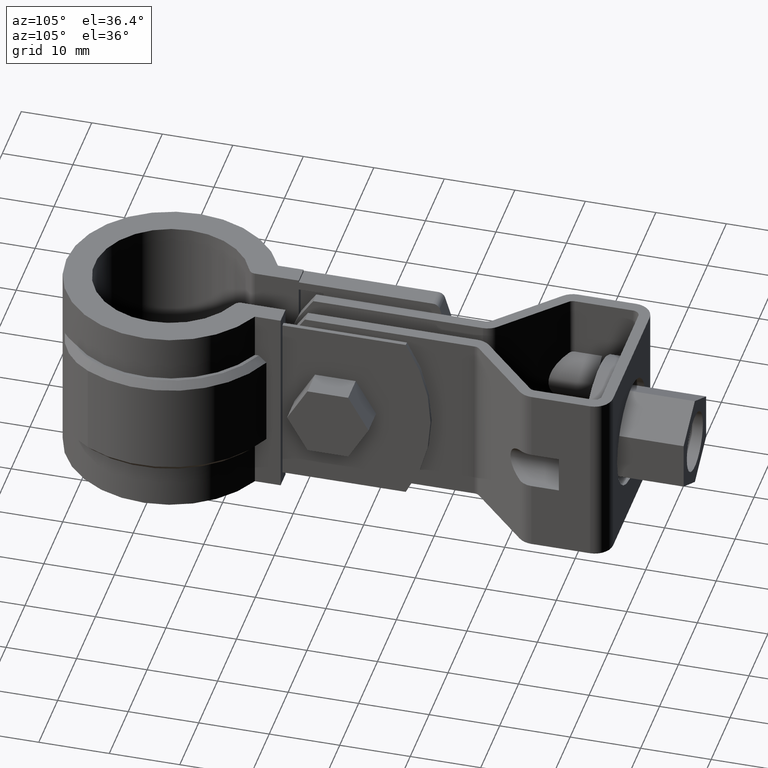
[diagram: clean part render]
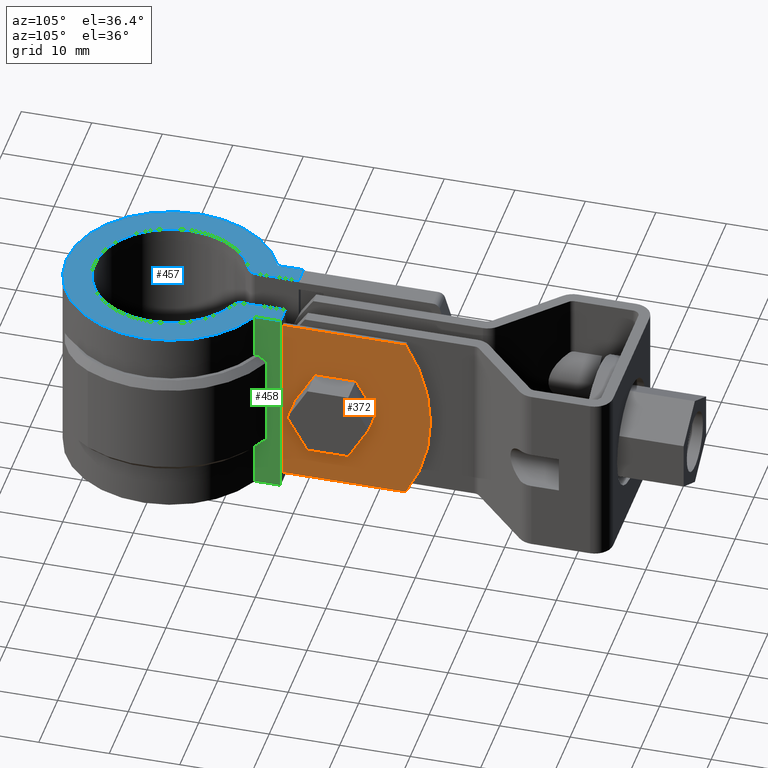
[diagram: same view with three faces highlighted in distinct colors, each labeled with its STEP entity id]
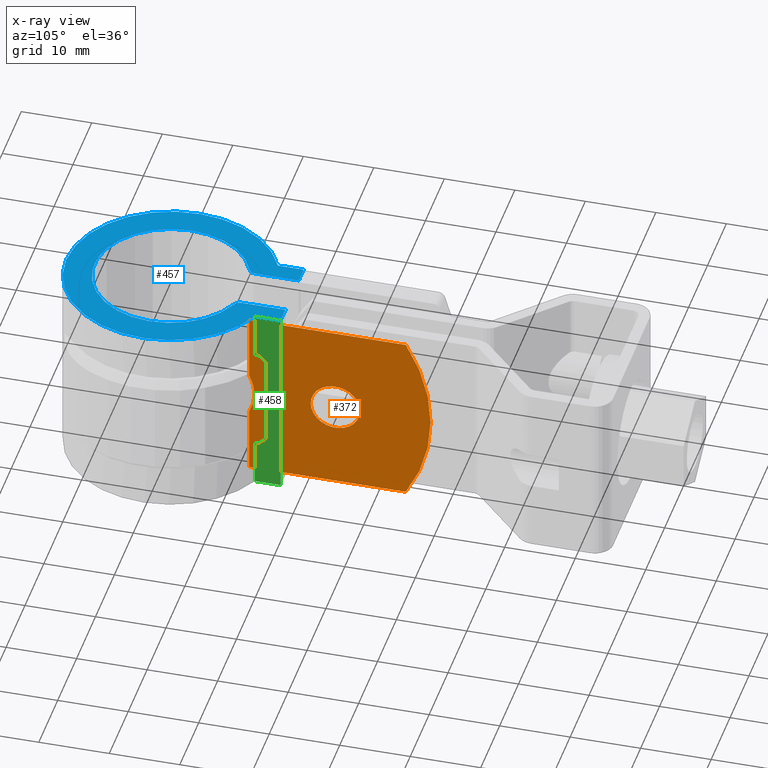
[diagram: x-ray of the same camera — body ghosted, the three highlighted faces saturated]
A machine part, auxiliary view with three faces highlighted in distinct colors.
The next image is the same camera in x-ray (body ghosted, the three faces saturated) — at least one of them is partly hidden behind the body in this view.
Their STEP definitions:

[orange] entity #372 — the highlighted planar face has unit normal (-1, 0, 0).
#372 = ADVANCED_FACE( '', ( #707, #708 ), #709, .F. );
#707 = FACE_BOUND( '', #1452, .T. );
#708 = FACE_OUTER_BOUND( '', #1453, .T. );
#709 = PLANE( '', #1454 );
#1452 = EDGE_LOOP( '', ( #2920 ) );
#1453 = EDGE_LOOP( '', ( #2921, #2922, #2923, #2924, #2925, #2926 ) );
#1454 = AXIS2_PLACEMENT_3D( '', #2927, #2928, #2929 );
#2920 = ORIENTED_EDGE( '', *, *, #6334, .F. );
#2921 = ORIENTED_EDGE( '', *, *, #6322, .F. );
#2922 = ORIENTED_EDGE( '', *, *, #6333, .T. );
#2923 = ORIENTED_EDGE( '', *, *, #6335, .T. );
#2924 = ORIENTED_EDGE( '', *, *, #6336, .F. );
#2925 = ORIENTED_EDGE( '', *, *, #6302, .F. );
#2926 = ORIENTED_EDGE( '', *, *, #6330, .T. );
#2927 = CARTESIAN_POINT( '', ( 5.10000000000000, 12.4560226396712, 0.000000000000000 ) );
#2928 = DIRECTION( '', ( -1.00000000000000, 6.12303176911189E-017, 0.000000000000000 ) );
#2929 = DIRECTION( '', ( 6.12303176911189E-017, 1.00000000000000, 0.000000000000000 ) );
#6302 = EDGE_CURVE( '', #7229, #7231, #7232, .T. );
#6322 = EDGE_CURVE( '', #7266, #7260, #7268, .T. );
#6330 = EDGE_CURVE( '', #7229, #7260, #7282, .T. );
#6333 = EDGE_CURVE( '', #7266, #7285, #7287, .T. );
#6334 = EDGE_CURVE( '', #7288, #7288, #7289, .F. );
#6335 = EDGE_CURVE( '', #7285, #7290, #7291, .T. );
#6336 = EDGE_CURVE( '', #7231, #7290, #7292, .T. );
#7229 = VERTEX_POINT( '', #8842 );
#7231 = VERTEX_POINT( '', #8844 );
#7232 = LINE( '', #8845, #8846 );
#7260 = VERTEX_POINT( '', #8947 );
#7266 = VERTEX_POINT( '', #9007 );
#7268 = B_SPLINE_CURVE_WITH_KNOTS( '', 3, ( #9022, #9023, #9024, #9025, #9026, #9027, #9028, #9029, #9030, #9031, #9032, #9033, #9034 ), .UNSPECIFIED., .F., .F., ( 4, 2, 2, 1, 2, 2, 4 ), ( 7.15244812269100E-018, 0.00156146706594364, 0.00234220059891546, 0.00312293413188728, 0.00390366766485910, 0.00468440119783091, 0.00624586826377455 ), .UNSPECIFIED. );
#7282 = LINE( '', #9145, #9146 );
#7285 = VERTEX_POINT( '', #9150 );
#7287 = LINE( '', #9152, #9153 );
#7288 = VERTEX_POINT( '', #9154 );
#7289 = CIRCLE( '', #9155, 3.50000000000000 );
#7290 = VERTEX_POINT( '', #9156 );
#7291 = LINE( '', #9157, #9158 );
#7292 = CIRCLE( '', #9159, 24.0000000000000 );
#8842 = CARTESIAN_POINT( '', ( 5.10000000000000, 12.4560226396712, 0.000000000000000 ) );
#8844 = CARTESIAN_POINT( '', ( 5.10000000000000, 34.6660166696247, 1.96626275013679E-031 ) );
#8845 = CARTESIAN_POINT( '', ( 5.10000000000000, 12.4560226396712, 0.000000000000000 ) );
#8846 = VECTOR( '', #12280, 1000.00000000000 );
#8947 = CARTESIAN_POINT( '', ( 5.10000000000000, 12.4560226396712, -9.49142302660780 ) );
#9007 = CARTESIAN_POINT( '', ( 5.10000000000000, 12.4560226396712, -15.5085769733922 ) );
#9022 = CARTESIAN_POINT( '', ( 5.10000000000000, 12.4560226396712, -15.5085769733922 ) );
#9023 = CARTESIAN_POINT( '', ( 5.10000000000000, 12.6983769073164, -15.0418384808945 ) );
#9024 = CARTESIAN_POINT( '', ( 5.10000000000000, 12.8820837839224, -14.5546680923872 ) );
#9025 = CARTESIAN_POINT( '', ( 5.10000000000000, 13.0708746798180, -13.7936833090650 ) );
#9026 = CARTESIAN_POINT( '', ( 5.09999999999999, 13.1190641562530, -13.5339701798726 ) );
#9027 = CARTESIAN_POINT( '', ( 5.09999999999998, 13.1828371040742, -13.0170007302456 ) );
#9028 = CARTESIAN_POINT( '', ( 5.09999999999984, 13.2149639764387, -12.4995355366777 ) );
#9029 = CARTESIAN_POINT( '', ( 5.10000000000000, 13.1827186519684, -11.9810619360295 ) );
#9030 = CARTESIAN_POINT( '', ( 5.10000000000000, 13.1184558356488, -11.4620867731067 ) );
#9031 = CARTESIAN_POINT( '', ( 5.10000000000001, 13.0700926469305, -11.2027157491336 ) );
#9032 = CARTESIAN_POINT( '', ( 5.10000000000001, 12.8816598140984, -10.4445274941389 ) );
#9033 = CARTESIAN_POINT( '', ( 5.10000000000000, 12.6983868123583, -9.95818059475186 ) );
#9034 = CARTESIAN_POINT( '', ( 5.10000000000000, 12.4560226396712, -9.49142302660780 ) );
#9145 = CARTESIAN_POINT( '', ( 5.10000000000000, 12.4560226396712, 0.000000000000000 ) );
#9146 = VECTOR( '', #12299, 1000.00000000000 );
#9150 = CARTESIAN_POINT( '', ( 5.10000000000000, 12.4560226396712, -25.0000000000000 ) );
#9152 = CARTESIAN_POINT( '', ( 5.10000000000000, 12.4560226396712, 0.000000000000000 ) );
#9153 = VECTOR( '', #12304, 1000.00000000000 );
#9154 = CARTESIAN_POINT( '', ( 5.10000000000000, 21.1782154210768, -12.5000000000000 ) );
#9155 = AXIS2_PLACEMENT_3D( '', #12305, #12306, #12307 );
#9156 = CARTESIAN_POINT( '', ( 5.10000000000000, 34.6660166696247, -25.0000000000000 ) );
#9157 = CARTESIAN_POINT( '', ( 5.10000000000000, 12.4560226396712, -25.0000000000000 ) );
#9158 = VECTOR( '', #12308, 1000.00000000000 );
#9159 = AXIS2_PLACEMENT_3D( '', #12309, #12310, #12311 );
#12280 = DIRECTION( '', ( 6.12303176911189E-017, 1.00000000000000, 0.000000000000000 ) );
#12299 = DIRECTION( '', ( 0.000000000000000, 0.000000000000000, -1.00000000000000 ) );
#12304 = DIRECTION( '', ( 0.000000000000000, 0.000000000000000, -1.00000000000000 ) );
#12305 = CARTESIAN_POINT( '', ( 5.10000000000000, 24.6782154210768, -12.5000000000000 ) );
#12306 = DIRECTION( '', ( -1.00000000000000, 6.12303176911189E-017, 0.000000000000000 ) );
#12307 = DIRECTION( '', ( -6.12303176911189E-017, -1.00000000000000, 0.000000000000000 ) );
#12308 = DIRECTION( '', ( 6.12303176911189E-017, 1.00000000000000, 0.000000000000000 ) );
#12309 = CARTESIAN_POINT( '', ( 5.10000000000000, 14.1782154210768, -12.5000000000000 ) );
#12310 = DIRECTION( '', ( -1.00000000000000, 6.12303176911189E-017, 0.000000000000000 ) );
#12311 = DIRECTION( '', ( -6.12303176911189E-017, -1.00000000000000, 0.000000000000000 ) );

[blue] entity #457 — the highlighted planar face has unit normal (0, 0, -1).
#457 = ADVANCED_FACE( '', ( #884 ), #885, .F. );
#884 = FACE_OUTER_BOUND( '', #1965, .T. );
#885 = PLANE( '', #1966 );
#1965 = EDGE_LOOP( '', ( #4369, #4370, #4371, #4372, #4373, #4374, #4375, #4376, #4377, #4378 ) );
#1966 = AXIS2_PLACEMENT_3D( '', #4379, #4380, #4381 );
#4369 = ORIENTED_EDGE( '', *, *, #6441, .F. );
#4370 = ORIENTED_EDGE( '', *, *, #6436, .F. );
#4371 = ORIENTED_EDGE( '', *, *, #6573, .F. );
#4372 = ORIENTED_EDGE( '', *, *, #6605, .F. );
#4373 = ORIENTED_EDGE( '', *, *, #6606, .F. );
#4374 = ORIENTED_EDGE( '', *, *, #6607, .T. );
#4375 = ORIENTED_EDGE( '', *, *, #6608, .T. );
#4376 = ORIENTED_EDGE( '', *, *, #6609, .F. );
#4377 = ORIENTED_EDGE( '', *, *, #6610, .T. );
#4378 = ORIENTED_EDGE( '', *, *, #6611, .T. );
#4379 = CARTESIAN_POINT( '', ( -6.50000000000000, 12.4560226396712, 1.50000000000000 ) );
#4380 = DIRECTION( '', ( 0.000000000000000, 0.000000000000000, -1.00000000000000 ) );
#4381 = DIRECTION( '', ( 0.000000000000000, 1.00000000000000, 0.000000000000000 ) );
#6436 = EDGE_CURVE( '', #7453, #7439, #7455, .T. );
#6441 = EDGE_CURVE( '', #7439, #7464, #7465, .T. );
#6573 = EDGE_CURVE( '', #7686, #7453, #7688, .T. );
#6605 = EDGE_CURVE( '', #7736, #7686, #7737, .T. );
#6606 = EDGE_CURVE( '', #7738, #7736, #7739, .T. );
#6607 = EDGE_CURVE( '', #7738, #7740, #7741, .T. );
#6608 = EDGE_CURVE( '', #7740, #7742, #7743, .F. );
#6609 = EDGE_CURVE( '', #7744, #7742, #7745, .F. );
#6610 = EDGE_CURVE( '', #7744, #7746, #7747, .F. );
#6611 = EDGE_CURVE( '', #7746, #7464, #7748, .T. );
#7439 = VERTEX_POINT( '', #9679 );
#7453 = VERTEX_POINT( '', #9704 );
#7455 = LINE( '', #9707, #9708 );
#7464 = VERTEX_POINT( '', #9721 );
#7465 = LINE( '', #9722, #9723 );
#7686 = VERTEX_POINT( '', #10668 );
#7688 = CIRCLE( '', #10671, 14.8450000000000 );
#7736 = VERTEX_POINT( '', #10740 );
#7737 = LINE( '', #10741, #10742 );
#7738 = VERTEX_POINT( '', #10743 );
#7739 = LINE( '', #10744, #10745 );
#7740 = VERTEX_POINT( '', #10746 );
#7741 = LINE( '', #10747, #10748 );
#7742 = VERTEX_POINT( '', #10749 );
#7743 = CIRCLE( '', #10750, 1.00000000000000 );
#7744 = VERTEX_POINT( '', #10751 );
#7745 = CIRCLE( '', #10752, 10.8500000000000 );
#7746 = VERTEX_POINT( '', #10753 );
#7747 = CIRCLE( '', #10754, 1.00000000000000 );
#7748 = LINE( '', #10755, #10756 );
#9679 = CARTESIAN_POINT( '', ( -6.10000000000000, 17.1782154210768, 1.50000000000000 ) );
#9704 = CARTESIAN_POINT( '', ( -6.09999999999997, 13.5338104390449, 1.50000000000000 ) );
#9707 = CARTESIAN_POINT( '', ( -6.10000000000000, 13.5338104390449, 1.50000000000000 ) );
#9708 = VECTOR( '', #12431, 1000.00000000000 );
#9721 = CARTESIAN_POINT( '', ( -3.50000000000000, 17.1782154210768, 1.50000000000000 ) );
#9722 = CARTESIAN_POINT( '', ( -6.50000000000000, 17.1782154210768, 1.50000000000000 ) );
#9723 = VECTOR( '', #12436, 1000.00000000000 );
#10668 = CARTESIAN_POINT( '', ( 6.10000000000000, 13.5338104390449, 1.50000000000000 ) );
#10671 = AXIS2_PLACEMENT_3D( '', #12570, #12571, #12572 );
#10740 = CARTESIAN_POINT( '', ( 6.09999999999999, 17.1782154210768, 1.50000000000000 ) );
#10741 = CARTESIAN_POINT( '', ( 6.10000000000000, 18.0100000000000, 1.50000000000000 ) );
#10742 = VECTOR( '', #12636, 1000.00000000000 );
#10743 = CARTESIAN_POINT( '', ( 3.50000000000000, 17.1782154210768, 1.50000000000000 ) );
#10744 = CARTESIAN_POINT( '', ( -6.50000000000000, 17.1782154210768, 1.50000000000000 ) );
#10745 = VECTOR( '', #12637, 1000.00000000000 );
#10746 = CARTESIAN_POINT( '', ( 3.50000000000000, 10.9623218343561, 1.50000000000000 ) );
#10747 = CARTESIAN_POINT( '', ( 3.50000000000000, 18.0100000000000, 1.50000000000000 ) );
#10748 = VECTOR( '', #12638, 1000.00000000000 );
#10749 = CARTESIAN_POINT( '', ( 4.12025316455696, 10.0372313841994, 1.50000000000000 ) );
#10750 = AXIS2_PLACEMENT_3D( '', #12639, #12640, #12641 );
#10751 = CARTESIAN_POINT( '', ( -4.12025316455696, 10.0372313841994, 1.50000000000000 ) );
#10752 = AXIS2_PLACEMENT_3D( '', #12642, #12643, #12644 );
#10753 = CARTESIAN_POINT( '', ( -3.50000000000000, 10.9623218343561, 1.50000000000000 ) );
#10754 = AXIS2_PLACEMENT_3D( '', #12645, #12646, #12647 );
#10755 = CARTESIAN_POINT( '', ( -3.50000000000000, 10.2646979984800, 1.50000000000000 ) );
#10756 = VECTOR( '', #12648, 1000.00000000000 );
#12431 = DIRECTION( '', ( 6.50521303491303E-017, 1.00000000000000, 0.000000000000000 ) );
#12436 = DIRECTION( '', ( 1.00000000000000, 0.000000000000000, 0.000000000000000 ) );
#12570 = CARTESIAN_POINT( '', ( 0.000000000000000, 0.000000000000000, 1.50000000000000 ) );
#12571 = DIRECTION( '', ( 0.000000000000000, 0.000000000000000, -1.00000000000000 ) );
#12572 = DIRECTION( '', ( 1.00000000000000, 0.000000000000000, 0.000000000000000 ) );
#12636 = DIRECTION( '', ( -6.50521303491303E-017, -1.00000000000000, 0.000000000000000 ) );
#12637 = DIRECTION( '', ( 1.00000000000000, 0.000000000000000, 0.000000000000000 ) );
#12638 = DIRECTION( '', ( -6.07153216591882E-017, -1.00000000000000, 0.000000000000000 ) );
#12639 = CARTESIAN_POINT( '', ( 4.50000000000000, 10.9623218343561, 1.50000000000000 ) );
#12640 = DIRECTION( '', ( 0.000000000000000, 0.000000000000000, -1.00000000000000 ) );
#12641 = DIRECTION( '', ( -1.00000000000000, 0.000000000000000, 0.000000000000000 ) );
#12642 = CARTESIAN_POINT( '', ( 0.000000000000000, 0.000000000000000, 1.50000000000000 ) );
#12643 = DIRECTION( '', ( 0.000000000000000, 0.000000000000000, -1.00000000000000 ) );
#12644 = DIRECTION( '', ( -1.00000000000000, 0.000000000000000, 0.000000000000000 ) );
#12645 = CARTESIAN_POINT( '', ( -4.50000000000000, 10.9623218343561, 1.50000000000000 ) );
#12646 = DIRECTION( '', ( 0.000000000000000, 0.000000000000000, -1.00000000000000 ) );
#12647 = DIRECTION( '', ( -1.00000000000000, 0.000000000000000, 0.000000000000000 ) );
#12648 = DIRECTION( '', ( 6.07153216591882E-017, 1.00000000000000, 0.000000000000000 ) );

[green] entity #458 — the highlighted planar face has unit normal (-1, 0, 0).
#458 = ADVANCED_FACE( '', ( #886 ), #887, .F. );
#886 = FACE_OUTER_BOUND( '', #1967, .T. );
#887 = PLANE( '', #1968 );
#1967 = EDGE_LOOP( '', ( #4382, #4383, #4384, #4385, #4386, #4387, #4388, #4389, #4390, #4391 ) );
#1968 = AXIS2_PLACEMENT_3D( '', #4392, #4393, #4394 );
#4382 = ORIENTED_EDGE( '', *, *, #6612, .F. );
#4383 = ORIENTED_EDGE( '', *, *, #6605, .T. );
#4384 = ORIENTED_EDGE( '', *, *, #6572, .F. );
#4385 = ORIENTED_EDGE( '', *, *, #6590, .T. );
#4386 = ORIENTED_EDGE( '', *, *, #6587, .T. );
#4387 = ORIENTED_EDGE( '', *, *, #6593, .T. );
#4388 = ORIENTED_EDGE( '', *, *, #6583, .T. );
#4389 = ORIENTED_EDGE( '', *, *, #6592, .F. );
#4390 = ORIENTED_EDGE( '', *, *, #6579, .F. );
#4391 = ORIENTED_EDGE( '', *, *, #6426, .F. );
#4392 = CARTESIAN_POINT( '', ( 6.10000000000000, 18.0100000000000, -26.5000000000000 ) );
#4393 = DIRECTION( '', ( -1.00000000000000, 6.50521303491303E-017, 0.000000000000000 ) );
#4394 = DIRECTION( '', ( 6.50521303491303E-017, 1.00000000000000, 0.000000000000000 ) );
#6426 = EDGE_CURVE( '', #7434, #7436, #7437, .T. );
#6572 = EDGE_CURVE( '', #7684, #7686, #7687, .T. );
#6579 = EDGE_CURVE( '', #7436, #7676, #7698, .T. );
#6583 = EDGE_CURVE( '', #7704, #7705, #7706, .T. );
#6587 = EDGE_CURVE( '', #7712, #7713, #7714, .T. );
#6590 = EDGE_CURVE( '', #7684, #7712, #7717, .T. );
#6592 = EDGE_CURVE( '', #7676, #7705, #7719, .T. );
#6593 = EDGE_CURVE( '', #7713, #7704, #7720, .F. );
#6605 = EDGE_CURVE( '', #7736, #7686, #7737, .T. );
#6612 = EDGE_CURVE( '', #7736, #7434, #7749, .T. );
#7434 = VERTEX_POINT( '', #9672 );
#7436 = VERTEX_POINT( '', #9675 );
#7437 = LINE( '', #9676, #9677 );
#7676 = VERTEX_POINT( '', #10651 );
#7684 = VERTEX_POINT( '', #10666 );
#7686 = VERTEX_POINT( '', #10668 );
#7687 = LINE( '', #10669, #10670 );
#7698 = LINE( '', #10688, #10689 );
#7704 = VERTEX_POINT( '', #10696 );
#7705 = VERTEX_POINT( '', #10697 );
#7706 = B_SPLINE_CURVE_WITH_KNOTS( '', 3, ( #10698, #10699, #10700, #10701 ), .UNSPECIFIED., .F., .F., ( 4, 4 ), ( 1.73472347597681E-018, 0.00147452920226637 ), .UNSPECIFIED. );
#7712 = VERTEX_POINT( '', #10708 );
#7713 = VERTEX_POINT( '', #10709 );
#7714 = B_SPLINE_CURVE_WITH_KNOTS( '', 3, ( #10710, #10711, #10712, #10713 ), .UNSPECIFIED., .F., .F., ( 4, 4 ), ( 0.000000000000000, 0.00147452920226637 ), .UNSPECIFIED. );
#7717 = LINE( '', #10716, #10717 );
#7719 = LINE( '', #10719, #10720 );
#7720 = LINE( '', #10721, #10722 );
#7736 = VERTEX_POINT( '', #10740 );
#7737 = LINE( '', #10741, #10742 );
#7749 = LINE( '', #10757, #10758 );
#9672 = CARTESIAN_POINT( '', ( 6.09999999999999, 17.1782154210768, -26.5000000000000 ) );
#9675 = CARTESIAN_POINT( '', ( 6.10000000000000, 13.5338104390449, -26.5000000000000 ) );
#9676 = CARTESIAN_POINT( '', ( 6.10000000000000, 18.0100000000000, -26.5000000000000 ) );
#9677 = VECTOR( '', #12421, 1000.00000000000 );
#10651 = CARTESIAN_POINT( '', ( 6.10000000000000, 13.5338104390449, -20.0000000000000 ) );
#10666 = CARTESIAN_POINT( '', ( 6.10000000000000, 13.5338104390449, -5.00000000000000 ) );
#10668 = CARTESIAN_POINT( '', ( 6.10000000000000, 13.5338104390449, 1.50000000000000 ) );
#10669 = CARTESIAN_POINT( '', ( 6.10000000000000, 13.5338104390449, -26.5000000000000 ) );
#10670 = VECTOR( '', #12569, 1000.00000000000 );
#10688 = CARTESIAN_POINT( '', ( 6.10000000000000, 13.5338104390449, -26.5000000000000 ) );
#10689 = VECTOR( '', #12580, 1000.00000000000 );
#10696 = CARTESIAN_POINT( '', ( 6.10000000000000, 15.1640701989934, -19.0000000000000 ) );
#10697 = CARTESIAN_POINT( '', ( 6.10000000000000, 14.0804483238283, -20.0000000000000 ) );
#10698 = CARTESIAN_POINT( '', ( 6.10000000000000, 15.1640701989934, -19.0000000000000 ) );
#10699 = CARTESIAN_POINT( '', ( 6.10000000000000, 14.8037474765965, -19.3342893274224 ) );
#10700 = CARTESIAN_POINT( '', ( 6.10000000000000, 14.4425998011444, -19.6676927232488 ) );
#10701 = CARTESIAN_POINT( '', ( 6.10000000000000, 14.0804483238283, -20.0000000000000 ) );
#10708 = CARTESIAN_POINT( '', ( 6.10000000000000, 14.0804483238283, -5.00000000000000 ) );
#10709 = CARTESIAN_POINT( '', ( 6.10000000000000, 15.1640701989934, -6.00000000000000 ) );
#10710 = CARTESIAN_POINT( '', ( 6.10000000000000, 14.0804483238283, -5.00000000000000 ) );
#10711 = CARTESIAN_POINT( '', ( 6.10000000000000, 14.4425998011444, -5.33230727675121 ) );
#10712 = CARTESIAN_POINT( '', ( 6.10000000000000, 14.8037474765965, -5.66571067257761 ) );
#10713 = CARTESIAN_POINT( '', ( 6.10000000000000, 15.1640701989934, -6.00000000000000 ) );
#10716 = CARTESIAN_POINT( '', ( 6.10000000000000, 18.0100000000000, -5.00000000000000 ) );
#10717 = VECTOR( '', #12601, 1000.00000000000 );
#10719 = CARTESIAN_POINT( '', ( 6.10000000000000, 18.0100000000000, -20.0000000000000 ) );
#10720 = VECTOR( '', #12605, 1000.00000000000 );
#10721 = CARTESIAN_POINT( '', ( 6.10000000000000, 15.1640701989934, -20.0000000000000 ) );
#10722 = VECTOR( '', #12606, 1000.00000000000 );
#10740 = CARTESIAN_POINT( '', ( 6.09999999999999, 17.1782154210768, 1.50000000000000 ) );
#10741 = CARTESIAN_POINT( '', ( 6.10000000000000, 18.0100000000000, 1.50000000000000 ) );
#10742 = VECTOR( '', #12636, 1000.00000000000 );
#10757 = CARTESIAN_POINT( '', ( 6.10000000000000, 17.1782154210768, -26.5000000000000 ) );
#10758 = VECTOR( '', #12649, 1000.00000000000 );
#12421 = DIRECTION( '', ( -6.50521303491303E-017, -1.00000000000000, 0.000000000000000 ) );
#12569 = DIRECTION( '', ( 0.000000000000000, 0.000000000000000, 1.00000000000000 ) );
#12580 = DIRECTION( '', ( 0.000000000000000, 0.000000000000000, 1.00000000000000 ) );
#12601 = DIRECTION( '', ( 6.50521303491303E-017, 1.00000000000000, 0.000000000000000 ) );
#12605 = DIRECTION( '', ( 6.50521303491303E-017, 1.00000000000000, 0.000000000000000 ) );
#12606 = DIRECTION( '', ( 0.000000000000000, 0.000000000000000, 1.00000000000000 ) );
#12636 = DIRECTION( '', ( -6.50521303491303E-017, -1.00000000000000, 0.000000000000000 ) );
#12649 = DIRECTION( '', ( 0.000000000000000, 0.000000000000000, -1.00000000000000 ) );